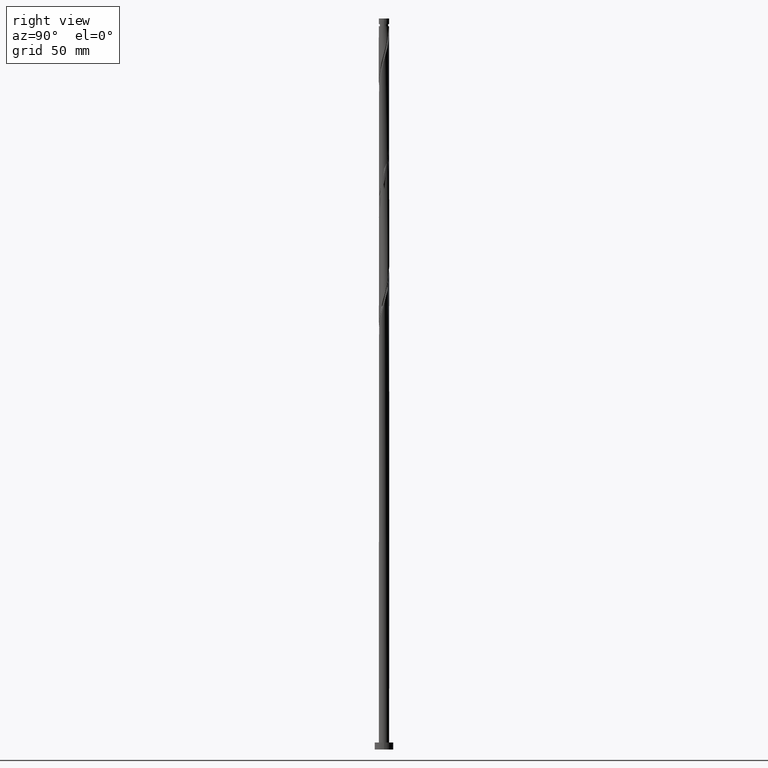
[diagram: clean part render]
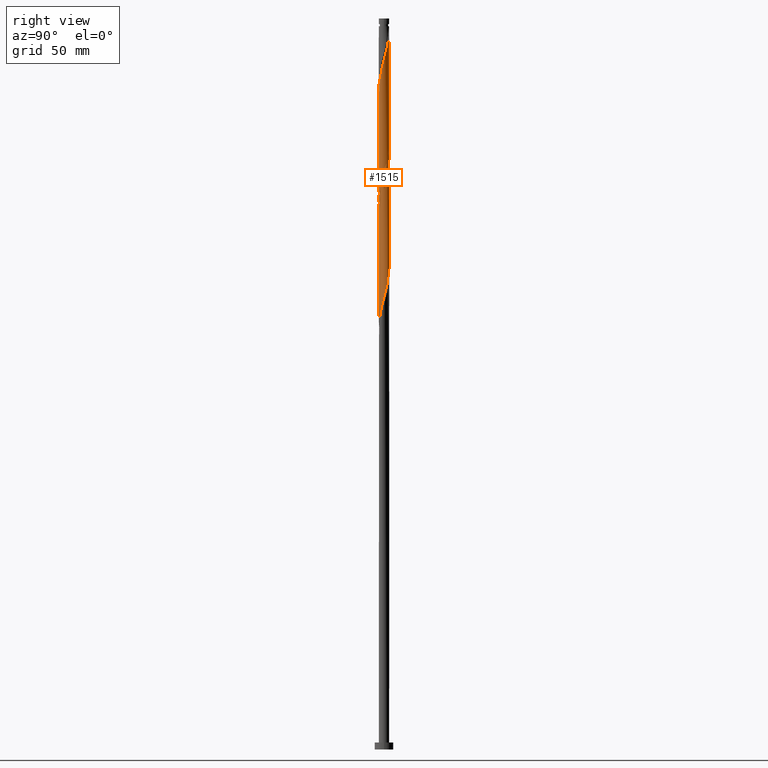
[diagram: same view with one face highlighted and labeled with its STEP entity id]
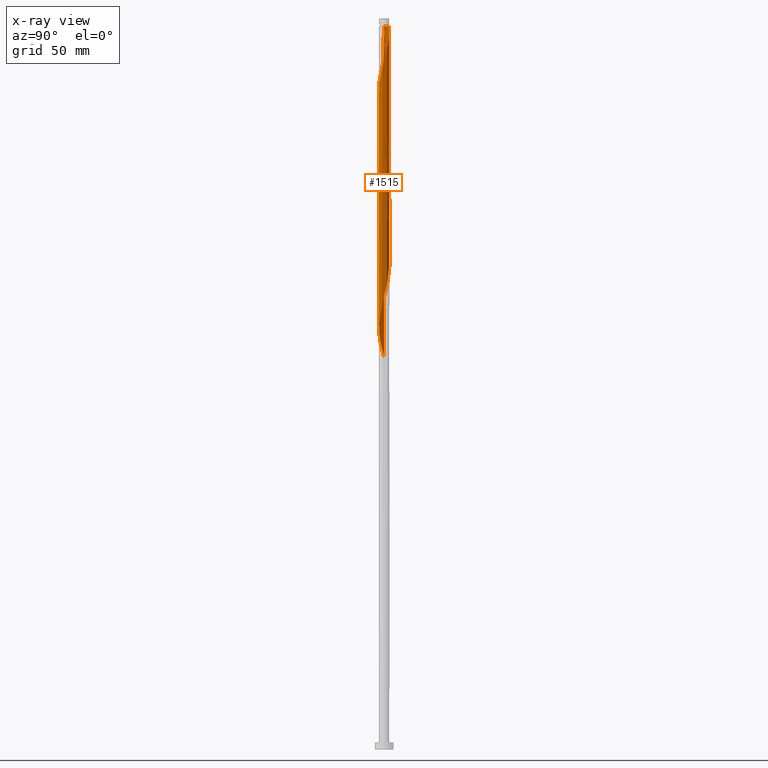
[diagram: x-ray of the same camera — body ghosted, the highlighted face saturated]
A machine part, right view. The second image highlights one B-rep face of the part: STEP entity #1515.
The next image is the same camera in x-ray: the body ghosted, the highlighted face saturated — about 0% of this face is hidden behind the body in this view.
In plain terms, the highlighted cylindrical surface (bore or boss wall) has radius 2.25 mm, axis along (-0, -0, -1).
Its self-contained STEP definition (entity closure, byte-faithful):
#9 = CARTESIAN_POINT ( 'NONE',  ( 0.7990389444694260268, -2.118562288820289297, 185.1304019602914366 ) ) ;
#21 = CARTESIAN_POINT ( 'NONE',  ( -2.050083556160028575, -0.9271771204911511965, 274.1929019602914650 ) ) ;
#31 = CARTESIAN_POINT ( 'NONE',  ( -2.250000000000001776, -1.100775797212518259E-15, 270.6433848823853054 ) ) ;
#80 = CARTESIAN_POINT ( 'NONE',  ( 1.792367362410764331, -1.360117361908403710, 242.3179019602913797 ) ) ;
#88 = CARTESIAN_POINT ( 'NONE',  ( -1.444774384835915360, -1.724855639444071498, 277.9429019602913513 ) ) ;
#89 = CARTESIAN_POINT ( 'NONE',  ( -1.444774384835912473, 1.724855639444069055, 214.1929019602913513 ) ) ;
#97 = CARTESIAN_POINT ( 'NONE',  ( -0.1993005142182364964, -2.255448671866115085, 233.8804019602914082 ) ) ;
#98 = CARTESIAN_POINT ( 'NONE',  ( -2.250000000000000000, 0.000000000000000000, 315.0000000000000000 ) ) ;
#102 = CARTESIAN_POINT ( 'NONE',  ( -0.7990389444694263599, 2.118562288820289297, 263.8804019602914650 ) ) ;
#107 = CARTESIAN_POINT ( 'NONE',  ( 2.180905345038901544, 0.5533099276000266187, 197.3179019602914082 ) ) ;
#119 = LINE ( 'NONE', #668, #178 ) ;
#121 = EDGE_CURVE ( 'NONE', #1019, #1704, #1321, .T. ) ;
#123 = CARTESIAN_POINT ( 'NONE',  ( 2.154551328133883725, -0.6961881791777262407, 192.6304019602913797 ) ) ;
#128 = CARTESIAN_POINT ( 'NONE',  ( 0.4477443466979810216, -2.205000000000002736, 285.4429019602913513 ) ) ;
#138 = CARTESIAN_POINT ( 'NONE',  ( -2.249999999999999112, -1.481383022011433466E-15, 273.9924190381975109 ) ) ;
#142 = CARTESIAN_POINT ( 'NONE',  ( -2.003102452848097847, -1.024734386752944593, 172.9429019602913513 ) ) ;
#153 = CARTESIAN_POINT ( 'NONE',  ( 1.360117361908405043, -1.792367362410768328, 289.1929019602913513 ) ) ;
#171 = CARTESIAN_POINT ( 'NONE',  ( 2.180905345038901544, 0.5533099276000266187, 249.8179019602914082 ) ) ;
#178 = VECTOR ( 'NONE', #555, 1000.000000000000000 ) ;
#180 = CARTESIAN_POINT ( 'NONE',  ( 0.6961881791777263517, -2.154551328133886834, 286.3804019602914650 ) ) ;
#183 = CARTESIAN_POINT ( 'NONE',  ( -2.205000000000002736, -0.4477443466979811881, 272.3179019602914082 ) ) ;
#186 = CARTESIAN_POINT ( 'NONE',  ( -0.7990389444694282473, -2.118562288820291517, 280.7554019602914082 ) ) ;
#194 = CARTESIAN_POINT ( 'NONE',  ( 2.154551328133886834, 0.6961881791777263517, 299.5054019602915218 ) ) ;
#223 = CARTESIAN_POINT ( 'NONE',  ( -1.024734386752944593, 2.003102452848097847, 212.3179019602914366 ) ) ;
#231 = CARTESIAN_POINT ( 'NONE',  ( -1.792367362410768328, -1.360117361908405043, 276.0679019602912945 ) ) ;
#241 = CARTESIAN_POINT ( 'NONE',  ( 0.05414019825619562770, -2.249348536561814438, 234.8179019602914366 ) ) ;
#248 = CARTESIAN_POINT ( 'NONE',  ( 1.360117361908403932, 1.792367362410764331, 202.9429019602913229 ) ) ;
#256 = CARTESIAN_POINT ( 'NONE',  ( 2.204999999999998739, -0.4477443466979814102, 246.0679019602913797 ) ) ;
#263 = CARTESIAN_POINT ( 'NONE',  ( -2.243248401257514679, -0.3075809107306277657, 170.1304019602913797 ) ) ;
#267 = CARTESIAN_POINT ( 'NONE',  ( -0.3075809107306280432, 2.243248401257514679, 262.0054019602914082 ) ) ;
#276 = CARTESIAN_POINT ( 'NONE',  ( -1.724855639444068833, -1.444774384835911807, 174.8179019602914650 ) ) ;
#277 = EDGE_LOOP ( 'NONE', ( #1132, #752, #1558, #1766, #548, #1642, #1060, #1255 ) ) ;
#298 = CARTESIAN_POINT ( 'NONE',  ( 1.250429829036466822, 1.887642616875908397, 305.1304019602914650 ) ) ;
#307 =( BOUNDED_CURVE ( )  B_SPLINE_CURVE ( 2, ( #783, #1498, #256, #367, #804, #1180, #80, #647, #497, #1066, #1212, #1360, #488, #522, #241, #97, #1741, #1075, #924, #382, #1187, #1463, #1756, #791, #1479, #654, #1610, #1623, #1043, #1602, #1344, #911, #359, #1052, #1352, #1204, #89, #773, #223, #640, #1335, #1764, #1774, #1326, #1750, #918, #513, #933, #248, #1196, #504, #797, #1058, #1617, #107, #375, #1653, #1788, #1781, #123, #1384, #982, #1671, #1394, #397, #1506, #549, #9, #1524, #687, #695, #1405, #430, #421, #679, #569, #950, #1234, #276, #413, #142, #821, #529, #263, #812, #972, #1116 ),
 .UNSPECIFIED., .F., .T. ) 
 B_SPLINE_CURVE_WITH_KNOTS ( ( 3, 2, 2, 2, 2, 2, 2, 2, 2, 2, 2, 2, 2, 2, 2, 2, 2, 2, 2, 2, 2, 2, 2, 2, 2, 2, 2, 2, 2, 2, 2, 2, 2, 2, 2, 2, 2, 2, 2, 2, 2, 2, 2, 3 ),
 ( 0.5545303401299219725, 0.5625000000000000000, 0.5714285714285713969, 0.5803571428571429047, 0.5892857142857143016, 0.5982142857142856984, 0.6071428571428570953, 0.6160714285714286031, 0.6250000000000000000, 0.6339285714285713969, 0.6428571428571429047, 0.6517857142857143016, 0.6607142857142856984, 0.6696428571428570953, 0.6785714285714286031, 0.6875000000000000000, 0.6964285714285713969, 0.7053571428571429047, 0.7142857142857143016, 0.7232142857142856984, 0.7321428571428570953, 0.7410714285714286031, 0.7500000000000000000, 0.7589285714285713969, 0.7678571428571429047, 0.7767857142857143016, 0.7857142857142856984, 0.7946428571428570953, 0.8035714285714286031, 0.8125000000000000000, 0.8214285714285713969, 0.8303571428571429047, 0.8392857142857143016, 0.8482142857142856984, 0.8571428571428570953, 0.8660714285714286031, 0.8750000000000000000, 0.8839285714285713969, 0.8928571428571429047, 0.9017857142857143016, 0.9107142857142856984, 0.9196428571428570953, 0.9285714285714286031, 0.9295303401299220836 ),
 .UNSPECIFIED. ) 
 CURVE ( )  GEOMETRIC_REPRESENTATION_ITEM ( )  RATIONAL_B_SPLINE_CURVE ( ( 0.9079949616362267273, 0.9039886423360895540, 0.9090909090909564672, 0.9033747362666312286, 0.9090909090909564672, 0.9033747362666312286, 0.9090909090909564672, 0.9033747362666312286, 0.9090909090909564672, 0.9033747362666312286, 0.9090909090909564672, 0.9033747362666312286, 0.9090909090909564672, 0.9033747362666312286, 0.9090909090909564672, 0.9033747362666312286, 0.9090909090909564672, 0.9033747362666312286, 0.9090909090909564672, 0.9033747362666312286, 0.9090909090909564672, 0.9033747362666312286, 0.9090909090909564672, 0.9033747362666312286, 0.9090909090909564672, 0.9033747362666312286, 0.9090909090909564672, 0.9033747362666312286, 0.9090909090909564672, 0.9033747362666312286, 0.9090909090909564672, 0.9033747362666312286, 0.9090909090909564672, 0.9033747362666312286, 0.9090909090909564672, 0.9033747362666312286, 0.9090909090909564672, 0.9033747362666312286, 0.9090909090909564672, 0.9033747362666312286, 0.9090909090909564672, 0.9033747362666312286, 0.9090909090909564672, 0.9033747362666312286, 0.9090909090909564672, 0.9033747362666312286, 0.9090909090909564672, 0.9033747362666312286, 0.9090909090909564672, 0.9033747362666312286, 0.9090909090909564672, 0.9033747362666312286, 0.9090909090909564672, 0.9033747362666312286, 0.9090909090909564672, 0.9033747362666312286, 0.9090909090909564672, 0.9033747362666312286, 0.9090909090909564672, 0.9033747362666312286, 0.9090909090909564672, 0.9033747362666312286, 0.9090909090909564672, 0.9033747362666312286, 0.9090909090909564672, 0.9033747362666312286, 0.9090909090909564672, 0.9033747362666312286, 0.9090909090909564672, 0.9033747362666312286, 0.9090909090909564672, 0.9033747362666312286, 0.9090909090909564672, 0.9033747362666312286, 0.9090909090909564672, 0.9033747362666312286, 0.9090909090909564672, 0.9033747362666312286, 0.9090909090909564672, 0.9033747362666312286, 0.9090909090909564672, 0.9033747362666312286, 0.9090909090909564672, 0.9033747362666312286, 0.9090909090909564672, 0.9084770030214982528, 0.9079949616362266163 ) ) 
 REPRESENTATION_ITEM ( '' )  );
#308 = CARTESIAN_POINT ( 'NONE',  ( -0.4477443466980445819, 2.205000000000636895, 311.6929019602914082 ) ) ;
#310 = DIRECTION ( 'NONE',  ( -0.000000000000000000, -0.000000000000000000, -1.000000000000000000 ) ) ;
#316 = CARTESIAN_POINT ( 'NONE',  ( 2.255448671866119525, 0.1993005142182358580, 297.6304019602914650 ) ) ;
#353 = VECTOR ( 'NONE', #1775, 1000.000000000000000 ) ;
#359 = CARTESIAN_POINT ( 'NONE',  ( -2.050083556160025466, 0.9271771204911501973, 217.9429019602914366 ) ) ;
#367 = CARTESIAN_POINT ( 'NONE',  ( 2.154551328133883725, -0.6961881791777262407, 245.1304019602914366 ) ) ;
#375 = CARTESIAN_POINT ( 'NONE',  ( 2.243248401257514679, 0.3075809107306274881, 196.3804019602914366 ) ) ;
#382 = CARTESIAN_POINT ( 'NONE',  ( -1.158166061804575264, -1.945615784186168318, 230.1304019602914082 ) ) ;
#397 = CARTESIAN_POINT ( 'NONE',  ( 1.444774384835911585, -1.724855639444069277, 187.9429019602914366 ) ) ;
#402 = CARTESIAN_POINT ( 'NONE',  ( -1.250429829036463936, 1.887642616875906176, 265.7554019602914650 ) ) ;
#406 = DIRECTION ( 'NONE',  ( -0.000000000000000000, -0.000000000000000000, -1.000000000000000000 ) ) ;
#413 = CARTESIAN_POINT ( 'NONE',  ( -1.887642616875905954, -1.250429829036463936, 173.8804019602914366 ) ) ;
#421 = CARTESIAN_POINT ( 'NONE',  ( -0.6961881791777261297, -2.154551328133883725, 179.5054019602914650 ) ) ;
#422 = VERTEX_POINT ( 'NONE', #1328 ) ;
#430 = CARTESIAN_POINT ( 'NONE',  ( -0.4477443466979811881, -2.204999999999998739, 180.4429019602914082 ) ) ;
#439 = CARTESIAN_POINT ( 'NONE',  ( 1.360117361908403932, 1.792367362410764331, 255.4429019602914082 ) ) ;
#443 = CARTESIAN_POINT ( 'NONE',  ( 1.724855639444070832, -1.444774384835915360, 291.0679019602913513 ) ) ;
#451 = CARTESIAN_POINT ( 'NONE',  ( 2.249348536561817546, -0.05414019825619669629, 296.6929019602914082 ) ) ;
#485 = VERTEX_POINT ( 'NONE', #1757 ) ;
#488 = CARTESIAN_POINT ( 'NONE',  ( 0.5533099276000268407, -2.180905345038901544, 236.6929019602914082 ) ) ;
#497 = CARTESIAN_POINT ( 'NONE',  ( 1.444774384835911585, -1.724855639444069277, 240.4429019602913797 ) ) ;
#504 = CARTESIAN_POINT ( 'NONE',  ( 1.724855639444069277, 1.444774384835911585, 201.0679019602914650 ) ) ;
#513 = CARTESIAN_POINT ( 'NONE',  ( 0.9271771204911505304, 2.050083556160025466, 204.8179019602913797 ) ) ;
#522 = CARTESIAN_POINT ( 'NONE',  ( 0.3075809107306275991, -2.243248401257514679, 235.7554019602913797 ) ) ;
#529 = CARTESIAN_POINT ( 'NONE',  ( -2.180905345038901544, -0.5533099276000269517, 171.0679019602914082 ) ) ;
#540 = CARTESIAN_POINT ( 'NONE',  ( 2.250000000000000000, 2.755455298081544285E-16, 315.0000000000000000 ) ) ;
#547 = AXIS2_PLACEMENT_3D ( 'NONE', #1646, #406, #673 ) ;
#548 = ORIENTED_EDGE ( 'NONE', *, *, #1489, .F. ) ;
#549 = CARTESIAN_POINT ( 'NONE',  ( 1.024734386752944149, -2.003102452848097847, 186.0679019602914082 ) ) ;
#555 = DIRECTION ( 'NONE',  ( -0.000000000000000000, -0.000000000000000000, -1.000000000000000000 ) ) ;
#569 = CARTESIAN_POINT ( 'NONE',  ( -1.158166061804575264, -1.945615784186168318, 177.6304019602914366 ) ) ;
#570 = CARTESIAN_POINT ( 'NONE',  ( 1.158166061804576152, -1.945615784186171426, 288.2554019602915218 ) ) ;
#581 = CARTESIAN_POINT ( 'NONE',  ( 2.180905345038905097, -0.5533099276000287281, 294.8179019602914082 ) ) ;
#587 = CARTESIAN_POINT ( 'NONE',  ( -2.250000000000003109, -0.2261335084333215006, 271.4816559613490199 ) ) ;
#590 = CARTESIAN_POINT ( 'NONE',  ( 0.000000000000000000, 0.000000000000000000, 311.6929019602914082 ) ) ;
#597 = CARTESIAN_POINT ( 'NONE',  ( 0.7990389444694285803, 2.118562288820291517, 307.0054019602914082 ) ) ;
#631 = EDGE_CURVE ( 'NONE', #1523, #1694, #1345, .T. ) ;
#640 = CARTESIAN_POINT ( 'NONE',  ( -0.7990389444694263599, 2.118562288820289297, 211.3804019602914366 ) ) ;
#647 = CARTESIAN_POINT ( 'NONE',  ( 1.639118940635362121, -1.562068662012232823, 241.3804019602914650 ) ) ;
#654 = CARTESIAN_POINT ( 'NONE',  ( -2.118562288820289297, -0.7990389444694260268, 224.5054019602914366 ) ) ;
#668 = CARTESIAN_POINT ( 'NONE',  ( -2.250000000000000000, 0.000000000000000000, 315.0000000000000000 ) ) ;
#673 = DIRECTION ( 'NONE',  ( -1.000000000000000000, 0.000000000000000000, 0.000000000000000000 ) ) ;
#679 = CARTESIAN_POINT ( 'NONE',  ( -0.9271771204911503084, -2.050083556160025466, 178.5679019602914366 ) ) ;
#684 = CARTESIAN_POINT ( 'NONE',  ( -2.204999999999998739, 0.4477443466979811326, 272.3179019602914082 ) ) ;
#687 = CARTESIAN_POINT ( 'NONE',  ( 0.3075809107306275991, -2.243248401257514679, 183.2554019602914366 ) ) ;
#691 = CARTESIAN_POINT ( 'NONE',  ( -2.154551328133884169, 0.6961881791777260187, 271.3804019602915218 ) ) ;
#695 = CARTESIAN_POINT ( 'NONE',  ( 0.05414019825619562770, -2.249348536561814438, 182.3179019602914082 ) ) ;
#702 = CARTESIAN_POINT ( 'NONE',  ( 2.003102452848097847, 1.024734386752944149, 251.6929019602913797 ) ) ;
#739 = CARTESIAN_POINT ( 'NONE',  ( 1.562068662012232823, 1.639118940635361898, 254.5054019602914650 ) ) ;
#752 = ORIENTED_EDGE ( 'NONE', *, *, #1263, .T. ) ;
#773 = CARTESIAN_POINT ( 'NONE',  ( -1.250429829036463936, 1.887642616875906176, 213.2554019602914082 ) ) ;
#783 = CARTESIAN_POINT ( 'NONE',  ( 2.249999999999999556, -2.231403141468103432E-15, 247.7424190381974256 ) ) ;
#791 = CARTESIAN_POINT ( 'NONE',  ( -1.887642616875905954, -1.250429829036463936, 226.3804019602914366 ) ) ;
#797 = CARTESIAN_POINT ( 'NONE',  ( 1.887642616875906176, 1.250429829036463492, 200.1304019602914082 ) ) ;
#804 = CARTESIAN_POINT ( 'NONE',  ( 2.050083556160025466, -0.9271771204911505304, 244.1929019602913797 ) ) ;
#812 = CARTESIAN_POINT ( 'NONE',  ( -2.249348536561814438, -0.05414019825619573872, 169.1929019602914366 ) ) ;
#813 = EDGE_CURVE ( 'NONE', #422, #1658, #1534, .T. ) ;
#817 = CARTESIAN_POINT ( 'NONE',  ( -0.05414019825619584281, 2.249348536561814438, 261.0679019602914082 ) ) ;
#821 = CARTESIAN_POINT ( 'NONE',  ( -2.118562288820289297, -0.7990389444694260268, 172.0054019602914366 ) ) ;
#833 = CARTESIAN_POINT ( 'NONE',  ( 1.158166061804575264, 1.945615784186167652, 256.3804019602914650 ) ) ;
#834 = CARTESIAN_POINT ( 'NONE',  ( 0.1993005142182359968, -2.255448671866119525, 284.5054019602914650 ) ) ;
#852 = CARTESIAN_POINT ( 'NONE',  ( -0.1993005142182356915, 2.255448671866119525, 310.7554019602915218 ) ) ;
#859 = CARTESIAN_POINT ( 'NONE',  ( 1.724855639444069277, 1.444774384835911585, 253.5679019602914366 ) ) ;
#872 = CARTESIAN_POINT ( 'NONE',  ( 1.444774384835915360, 1.724855639444070832, 304.1929019602912945 ) ) ;
#911 = CARTESIAN_POINT ( 'NONE',  ( -2.154551328133884169, 0.6961881791777260187, 218.8804019602914366 ) ) ;
#918 = CARTESIAN_POINT ( 'NONE',  ( 0.6961881791777263517, 2.154551328133883725, 205.7554019602914650 ) ) ;
#924 = CARTESIAN_POINT ( 'NONE',  ( -0.9271771204911503084, -2.050083556160025466, 231.0679019602914366 ) ) ;
#933 = CARTESIAN_POINT ( 'NONE',  ( 1.158166061804575264, 1.945615784186167652, 203.8804019602914082 ) ) ;
#946 = CARTESIAN_POINT ( 'NONE',  ( -2.050083556160025466, 0.9271771204911501973, 270.4429019602913513 ) ) ;
#950 = CARTESIAN_POINT ( 'NONE',  ( -1.360117361908403710, -1.792367362410764331, 176.6929019602913513 ) ) ;
#954 = CARTESIAN_POINT ( 'NONE',  ( -1.024734386752944593, 2.003102452848097847, 264.8179019602914082 ) ) ;
#964 = FACE_OUTER_BOUND ( 'NONE', #277, .T. ) ;
#972 = CARTESIAN_POINT ( 'NONE',  ( -2.249999999999999112, -0.02707401862437654530, 169.0927817264225723 ) ) ;
#982 = CARTESIAN_POINT ( 'NONE',  ( 1.945615784186167652, -1.158166061804575264, 190.7554019602914650 ) ) ;
#994 = CARTESIAN_POINT ( 'NONE',  ( 1.887642616875908619, -1.250429829036466822, 292.0054019602914650 ) ) ;
#1004 = CARTESIAN_POINT ( 'NONE',  ( 1.792367362410768328, 1.360117361908404821, 302.3179019602913513 ) ) ;
#1019 = VERTEX_POINT ( 'NONE', #1576 ) ;
#1043 = CARTESIAN_POINT ( 'NONE',  ( -2.249348536561814438, -0.05414019825619573872, 221.6929019602913797 ) ) ;
#1052 = CARTESIAN_POINT ( 'NONE',  ( -1.945615784186168318, 1.158166061804575264, 217.0054019602914934 ) ) ;
#1058 = CARTESIAN_POINT ( 'NONE',  ( 2.003102452848097847, 1.024734386752944149, 199.1929019602914082 ) ) ;
#1060 = ORIENTED_EDGE ( 'NONE', *, *, #813, .T. ) ;
#1066 = CARTESIAN_POINT ( 'NONE',  ( 1.250429829036463936, -1.887642616875906398, 239.5054019602914650 ) ) ;
#1070 = CARTESIAN_POINT ( 'NONE',  ( -0.05414019825619649506, -2.249348536561817546, 283.5679019602913513 ) ) ;
#1075 = CARTESIAN_POINT ( 'NONE',  ( -0.6961881791777261297, -2.154551328133883725, 232.0054019602914934 ) ) ;
#1087 = CARTESIAN_POINT ( 'NONE',  ( -2.249999999999973355, 0.000000000000000000, 311.6929019602914082 ) ) ;
#1116 = CARTESIAN_POINT ( 'NONE',  ( -2.249999999999999112, 1.992590765123691183E-15, 168.9924190381975109 ) ) ;
#1117 = CARTESIAN_POINT ( 'NONE',  ( 0.5533099276000287281, 2.180905345038905097, 307.9429019602915787 ) ) ;
#1131 = CARTESIAN_POINT ( 'NONE',  ( 2.243248401257517788, -0.3075809107306291534, 295.7554019602914082 ) ) ;
#1132 = ORIENTED_EDGE ( 'NONE', *, *, #631, .F. ) ;
#1152 = CARTESIAN_POINT ( 'NONE',  ( -0.5533099276000283950, -2.180905345038905097, 281.6929019602912945 ) ) ;
#1156 = CARTESIAN_POINT ( 'NONE',  ( 2.118562288820289297, 0.7990389444694258048, 250.7554019602913797 ) ) ;
#1177 =( BOUNDED_CURVE ( )  B_SPLINE_CURVE ( 2, ( #1640, #1239, #684, #691, #946, #1368, #1224, #1347, #1650, #402, #954, #102, #1511, #267, #817, #1374, #1677, #1274, #1248, #833, #439, #739, #859, #1293, #702, #1156, #171, #1559, #1401, #1540, #1529 ),
 .UNSPECIFIED., .F., .T. ) 
 B_SPLINE_CURVE_WITH_KNOTS ( ( 3, 2, 2, 2, 2, 2, 2, 2, 2, 2, 2, 2, 2, 2, 2, 3 ),
 ( 0.4295303401299220281, 0.4375000000000000000, 0.4464285714285714524, 0.4553571428571428492, 0.4642857142857143016, 0.4732142857142856984, 0.4821428571428571508, 0.4910714285714285476, 0.5000000000000000000, 0.5089285714285713969, 0.5178571428571429047, 0.5267857142857143016, 0.5357142857142856984, 0.5446428571428570953, 0.5535714285714286031, 0.5545303401299219725 ),
 .UNSPECIFIED. ) 
 CURVE ( )  GEOMETRIC_REPRESENTATION_ITEM ( )  RATIONAL_B_SPLINE_CURVE ( ( 0.9079949616362266163, 0.9039886423360895540, 0.9090909090909564672, 0.9033747362666312286, 0.9090909090909564672, 0.9033747362666312286, 0.9090909090909564672, 0.9033747362666312286, 0.9090909090909564672, 0.9033747362666312286, 0.9090909090909564672, 0.9033747362666312286, 0.9090909090909564672, 0.9033747362666312286, 0.9090909090909564672, 0.9033747362666312286, 0.9090909090909564672, 0.9033747362666312286, 0.9090909090909564672, 0.9033747362666312286, 0.9090909090909564672, 0.9033747362666312286, 0.9090909090909564672, 0.9033747362666312286, 0.9090909090909564672, 0.9033747362666312286, 0.9090909090909564672, 0.9033747362666312286, 0.9090909090909564672, 0.9084770030214983638, 0.9079949616362267273 ) ) 
 REPRESENTATION_ITEM ( '' )  );
#1180 = CARTESIAN_POINT ( 'NONE',  ( 1.945615784186167652, -1.158166061804575264, 243.2554019602914366 ) ) ;
#1187 = CARTESIAN_POINT ( 'NONE',  ( -1.360117361908403710, -1.792367362410764331, 229.1929019602913797 ) ) ;
#1196 = CARTESIAN_POINT ( 'NONE',  ( 1.562068662012232823, 1.639118940635361898, 202.0054019602914650 ) ) ;
#1204 = CARTESIAN_POINT ( 'NONE',  ( -1.639118940635362121, 1.562068662012232378, 215.1304019602914650 ) ) ;
#1212 = CARTESIAN_POINT ( 'NONE',  ( 1.024734386752944149, -2.003102452848097847, 238.5679019602914366 ) ) ;
#1216 = CARTESIAN_POINT ( 'NONE',  ( 2.249999999999999112, -2.231403141468103432E-15, 247.7424190381974256 ) ) ;
#1224 = CARTESIAN_POINT ( 'NONE',  ( -1.792367362410764997, 1.360117361908403710, 268.5679019602914082 ) ) ;
#1234 = CARTESIAN_POINT ( 'NONE',  ( -1.562068662012232823, -1.639118940635362121, 175.7554019602914082 ) ) ;
#1239 = CARTESIAN_POINT ( 'NONE',  ( -2.249999999999999112, 0.2261335084333246925, 273.1541479592339101 ) ) ;
#1248 = CARTESIAN_POINT ( 'NONE',  ( 0.9271771204911505304, 2.050083556160025466, 257.3179019602914082 ) ) ;
#1255 = ORIENTED_EDGE ( 'NONE', *, *, #1771, .F. ) ;
#1263 = EDGE_CURVE ( 'NONE', #1523, #1704, #1654, .T. ) ;
#1267 = CARTESIAN_POINT ( 'NONE',  ( -2.154551328133886834, -0.6961881791777263517, 273.2554019602914082 ) ) ;
#1274 = CARTESIAN_POINT ( 'NONE',  ( 0.6961881791777263517, 2.154551328133883725, 258.2554019602914082 ) ) ;
#1289 = CARTESIAN_POINT ( 'NONE',  ( 0.05414019825619682119, 2.249348536561817546, 309.8179019602913513 ) ) ;
#1293 = CARTESIAN_POINT ( 'NONE',  ( 1.887642616875906176, 1.250429829036463492, 252.6304019602914650 ) ) ;
#1297 = CARTESIAN_POINT ( 'NONE',  ( 1.562068662012234377, -1.639118940635365451, 290.1304019602915218 ) ) ;
#1321 =( BOUNDED_CURVE ( )  B_SPLINE_CURVE ( 2, ( #31, #587, #183, #1267, #21, #1487, #231, #1334, #88, #1638, #1366, #186, #1152, #1768, #1070, #834, #128, #180, #1702, #570, #153, #1297, #443, #994, #1553, #1583, #581, #1131, #451, #316, #1433, #194, #1544, #1722, #1004, #1563, #872, #298, #1693, #597, #1117, #1681, #1289, #852, #308 ),
 .UNSPECIFIED., .F., .T. ) 
 B_SPLINE_CURVE_WITH_KNOTS ( ( 3, 2, 2, 2, 2, 2, 2, 2, 2, 2, 2, 2, 2, 2, 2, 2, 2, 2, 2, 2, 2, 2, 3 ),
 ( 0.5545303401299219725, 0.5625000000000000000, 0.5714285714285713969, 0.5803571428571427937, 0.5892857142857143016, 0.5982142857142856984, 0.6071428571428572063, 0.6160714285714286031, 0.6250000000000000000, 0.6339285714285713969, 0.6428571428571427937, 0.6517857142857143016, 0.6607142857142856984, 0.6696428571428572063, 0.6785714285714286031, 0.6875000000000000000, 0.6964285714285713969, 0.7053571428571427937, 0.7142857142857143016, 0.7232142857142856984, 0.7321428571428572063, 0.7410714285714286031, 0.7500000000000000000 ),
 .UNSPECIFIED. ) 
 CURVE ( )  GEOMETRIC_REPRESENTATION_ITEM ( )  RATIONAL_B_SPLINE_CURVE ( ( 0.9079949616362330556, 0.9039886423360957712, 0.9090909090909629064, 0.9033747362666375569, 0.9090909090909629064, 0.9033747362666375569, 0.9090909090909629064, 0.9033747362666375569, 0.9090909090909629064, 0.9033747362666375569, 0.9090909090909629064, 0.9033747362666375569, 0.9090909090909629064, 0.9033747362666375569, 0.9090909090909629064, 0.9033747362666375569, 0.9090909090909629064, 0.9033747362666375569, 0.9090909090909629064, 0.9033747362666375569, 0.9090909090909629064, 0.9033747362666375569, 0.9090909090909629064, 0.9033747362666375569, 0.9090909090909629064, 0.9033747362666375569, 0.9090909090909629064, 0.9033747362666375569, 0.9090909090909629064, 0.9033747362666375569, 0.9090909090909629064, 0.9033747362666375569, 0.9090909090909629064, 0.9033747362666375569, 0.9090909090909629064, 0.9033747362666375569, 0.9090909090909629064, 0.9033747362666375569, 0.9090909090909629064, 0.9033747362666375569, 0.9090909090909629064, 0.9033747362666375569, 0.9090909090909629064, 0.9033747362666375569, 0.9090909090909629064 ) ) 
 REPRESENTATION_ITEM ( '' )  );
#1326 = CARTESIAN_POINT ( 'NONE',  ( 0.1993005142182362188, 2.255448671866115085, 207.6304019602914082 ) ) ;
#1328 = CARTESIAN_POINT ( 'NONE',  ( 2.250000000000000000, 2.755455298081544285E-16, 311.6929019602914082 ) ) ;
#1334 = CARTESIAN_POINT ( 'NONE',  ( -1.639118940635365451, -1.562068662012234377, 277.0054019602915218 ) ) ;
#1335 = CARTESIAN_POINT ( 'NONE',  ( -0.5533099276000270628, 2.180905345038901544, 210.4429019602913797 ) ) ;
#1336 = VECTOR ( 'NONE', #1372, 1000.000000000000000 ) ;
#1344 = CARTESIAN_POINT ( 'NONE',  ( -2.204999999999998739, 0.4477443466979811326, 219.8179019602914366 ) ) ;
#1345 = LINE ( 'NONE', #98, #353 ) ;
#1347 = CARTESIAN_POINT ( 'NONE',  ( -1.639118940635362121, 1.562068662012232378, 267.6304019602914082 ) ) ;
#1352 = CARTESIAN_POINT ( 'NONE',  ( -1.792367362410764997, 1.360117361908403710, 216.0679019602914082 ) ) ;
#1360 = CARTESIAN_POINT ( 'NONE',  ( 0.7990389444694260268, -2.118562288820289297, 237.6304019602913797 ) ) ;
#1366 = CARTESIAN_POINT ( 'NONE',  ( -1.024734386752947257, -2.003102452848099624, 279.8179019602914082 ) ) ;
#1368 = CARTESIAN_POINT ( 'NONE',  ( -1.945615784186168318, 1.158166061804575264, 269.5054019602914082 ) ) ;
#1372 = DIRECTION ( 'NONE',  ( -0.000000000000000000, -0.000000000000000000, -1.000000000000000000 ) ) ;
#1374 = CARTESIAN_POINT ( 'NONE',  ( 0.1993005142182362188, 2.255448671866115085, 260.1304019602914650 ) ) ;
#1384 = CARTESIAN_POINT ( 'NONE',  ( 2.050083556160025466, -0.9271771204911505304, 191.6929019602914082 ) ) ;
#1394 = CARTESIAN_POINT ( 'NONE',  ( 1.639118940635362121, -1.562068662012232823, 188.8804019602914934 ) ) ;
#1401 = CARTESIAN_POINT ( 'NONE',  ( 2.249348536561814438, 0.05414019825619552362, 247.9429019602913797 ) ) ;
#1405 = CARTESIAN_POINT ( 'NONE',  ( -0.1993005142182364964, -2.255448671866115085, 181.3804019602914366 ) ) ;
#1433 = CARTESIAN_POINT ( 'NONE',  ( 2.205000000000002736, 0.4477443466979809106, 298.5679019602913513 ) ) ;
#1463 = CARTESIAN_POINT ( 'NONE',  ( -1.562068662012232823, -1.639118940635362121, 228.2554019602914366 ) ) ;
#1479 = CARTESIAN_POINT ( 'NONE',  ( -2.003102452848097847, -1.024734386752944593, 225.4429019602914366 ) ) ;
#1487 = CARTESIAN_POINT ( 'NONE',  ( -1.945615784186171426, -1.158166061804576152, 275.1304019602914650 ) ) ;
#1489 = EDGE_CURVE ( 'NONE', #1658, #485, #307, .T. ) ;
#1498 = CARTESIAN_POINT ( 'NONE',  ( 2.249999999999999556, -0.2261335084333220558, 246.9041479592339385 ) ) ;
#1506 = CARTESIAN_POINT ( 'NONE',  ( 1.250429829036463936, -1.887642616875906398, 187.0054019602914082 ) ) ;
#1511 = CARTESIAN_POINT ( 'NONE',  ( -0.5533099276000270628, 2.180905345038901544, 262.9429019602914082 ) ) ;
#1515 = ADVANCED_FACE ( 'NONE', ( #964 ), #1680, .T. ) ;
#1519 = CARTESIAN_POINT ( 'NONE',  ( -0.4477443466980445819, 2.205000000000636895, 311.6929019602914082 ) ) ;
#1523 = VERTEX_POINT ( 'NONE', #1087 ) ;
#1524 = CARTESIAN_POINT ( 'NONE',  ( 0.5533099276000268407, -2.180905345038901544, 184.1929019602913513 ) ) ;
#1529 = CARTESIAN_POINT ( 'NONE',  ( 2.249999999999999556, -2.231403141468103432E-15, 247.7424190381974256 ) ) ;
#1534 = LINE ( 'NONE', #540, #1336 ) ;
#1540 = CARTESIAN_POINT ( 'NONE',  ( 2.249999999999999112, 0.02707401862437944923, 247.8427817264225439 ) ) ;
#1544 = CARTESIAN_POINT ( 'NONE',  ( 2.050083556160028575, 0.9271771204911509745, 300.4429019602914650 ) ) ;
#1553 = CARTESIAN_POINT ( 'NONE',  ( 2.003102452848099624, -1.024734386752947257, 292.9429019602913513 ) ) ;
#1558 = ORIENTED_EDGE ( 'NONE', *, *, #121, .F. ) ;
#1559 = CARTESIAN_POINT ( 'NONE',  ( 2.243248401257514679, 0.3075809107306274881, 248.8804019602914650 ) ) ;
#1563 = CARTESIAN_POINT ( 'NONE',  ( 1.639118940635365451, 1.562068662012234155, 303.2554019602914650 ) ) ;
#1576 = CARTESIAN_POINT ( 'NONE',  ( -2.250000000000001776, -1.100775797212518259E-15, 270.6433848823853054 ) ) ;
#1583 = CARTESIAN_POINT ( 'NONE',  ( 2.118562288820291517, -0.7990389444694282473, 293.8804019602914650 ) ) ;
#1602 = CARTESIAN_POINT ( 'NONE',  ( -2.255448671866115085, 0.1993005142182363854, 220.7554019602914366 ) ) ;
#1610 = CARTESIAN_POINT ( 'NONE',  ( -2.180905345038901544, -0.5533099276000269517, 223.5679019602913513 ) ) ;
#1617 = CARTESIAN_POINT ( 'NONE',  ( 2.118562288820289297, 0.7990389444694258048, 198.2554019602914366 ) ) ;
#1623 = CARTESIAN_POINT ( 'NONE',  ( -2.243248401257514679, -0.3075809107306277657, 222.6304019602914366 ) ) ;
#1638 = CARTESIAN_POINT ( 'NONE',  ( -1.250429829036466822, -1.887642616875908619, 278.8804019602914082 ) ) ;
#1640 = CARTESIAN_POINT ( 'NONE',  ( -2.249999999999999112, -1.481383022011433466E-15, 273.9924190381975109 ) ) ;
#1642 = ORIENTED_EDGE ( 'NONE', *, *, #813, .F. ) ;
#1646 = CARTESIAN_POINT ( 'NONE',  ( 0.000000000000000000, 0.000000000000000000, 315.0000000000000000 ) ) ;
#1650 = CARTESIAN_POINT ( 'NONE',  ( -1.444774384835912473, 1.724855639444069055, 266.6929019602914650 ) ) ;
#1653 = CARTESIAN_POINT ( 'NONE',  ( 2.249348536561814438, 0.05414019825619552362, 195.4429019602913513 ) ) ;
#1654 = CIRCLE ( 'NONE', #1718, 2.249999999999973355 ) ;
#1658 = VERTEX_POINT ( 'NONE', #1216 ) ;
#1670 = EDGE_CURVE ( 'NONE', #1019, #485, #119, .T. ) ;
#1671 = CARTESIAN_POINT ( 'NONE',  ( 1.792367362410764331, -1.360117361908403710, 189.8179019602913513 ) ) ;
#1677 = CARTESIAN_POINT ( 'NONE',  ( 0.4477443466979814657, 2.204999999999998739, 259.1929019602913513 ) ) ;
#1680 = CYLINDRICAL_SURFACE ( 'NONE', #547, 2.250000000000000000 ) ;
#1681 = CARTESIAN_POINT ( 'NONE',  ( 0.3075809107306292645, 2.243248401257517788, 308.8804019602914082 ) ) ;
#1693 = CARTESIAN_POINT ( 'NONE',  ( 1.024734386752947257, 2.003102452848099624, 306.0679019602912945 ) ) ;
#1694 = VERTEX_POINT ( 'NONE', #138 ) ;
#1702 = CARTESIAN_POINT ( 'NONE',  ( 0.9271771204911509745, -2.050083556160028575, 287.3179019602913513 ) ) ;
#1703 = DIRECTION ( 'NONE',  ( -1.000000000000000000, 0.000000000000000000, 0.000000000000000000 ) ) ;
#1704 = VERTEX_POINT ( 'NONE', #1519 ) ;
#1718 = AXIS2_PLACEMENT_3D ( 'NONE', #590, #310, #1703 ) ;
#1722 = CARTESIAN_POINT ( 'NONE',  ( 1.945615784186171648, 1.158166061804576152, 301.3804019602914082 ) ) ;
#1741 = CARTESIAN_POINT ( 'NONE',  ( -0.4477443466979811881, -2.204999999999998739, 232.9429019602913513 ) ) ;
#1750 = CARTESIAN_POINT ( 'NONE',  ( 0.4477443466979814657, 2.204999999999998739, 206.6929019602914366 ) ) ;
#1756 = CARTESIAN_POINT ( 'NONE',  ( -1.724855639444068833, -1.444774384835911807, 227.3179019602914082 ) ) ;
#1757 = CARTESIAN_POINT ( 'NONE',  ( -2.249999999999999112, 1.992590765123691183E-15, 168.9924190381975109 ) ) ;
#1764 = CARTESIAN_POINT ( 'NONE',  ( -0.3075809107306280432, 2.243248401257514679, 209.5054019602914366 ) ) ;
#1766 = ORIENTED_EDGE ( 'NONE', *, *, #1670, .T. ) ;
#1768 = CARTESIAN_POINT ( 'NONE',  ( -0.3075809107306290424, -2.243248401257518232, 282.6304019602914650 ) ) ;
#1771 = EDGE_CURVE ( 'NONE', #1694, #1658, #1177, .T. ) ;
#1774 = CARTESIAN_POINT ( 'NONE',  ( -0.05414019825619584281, 2.249348536561814438, 208.5679019602914082 ) ) ;
#1775 = DIRECTION ( 'NONE',  ( -0.000000000000000000, -0.000000000000000000, -1.000000000000000000 ) ) ;
#1781 = CARTESIAN_POINT ( 'NONE',  ( 2.204999999999998739, -0.4477443466979814102, 193.5679019602914366 ) ) ;
#1788 = CARTESIAN_POINT ( 'NONE',  ( 2.255448671866115085, -0.1993005142182367462, 194.5054019602915218 ) ) ;